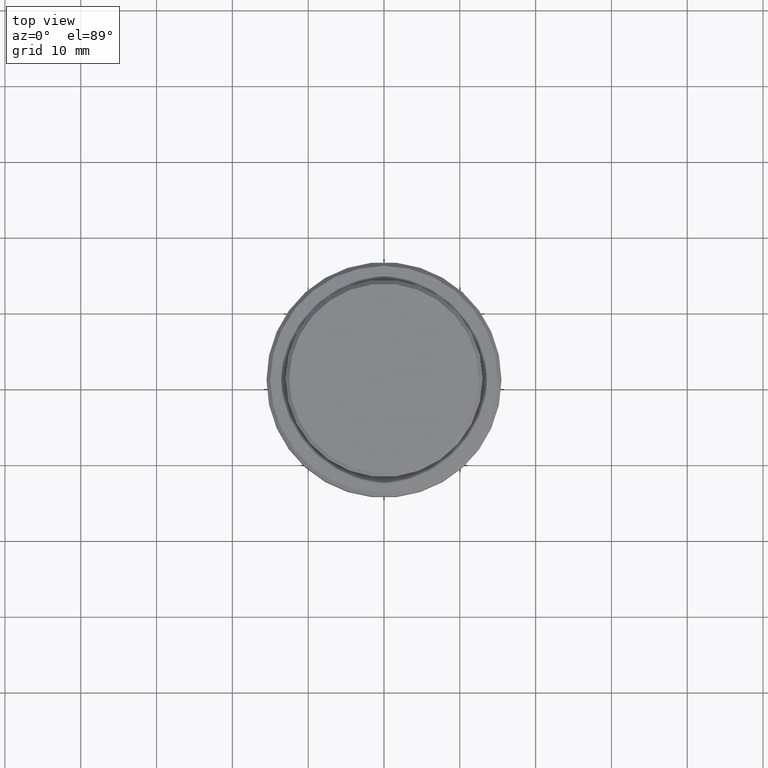
[diagram: clean part render]
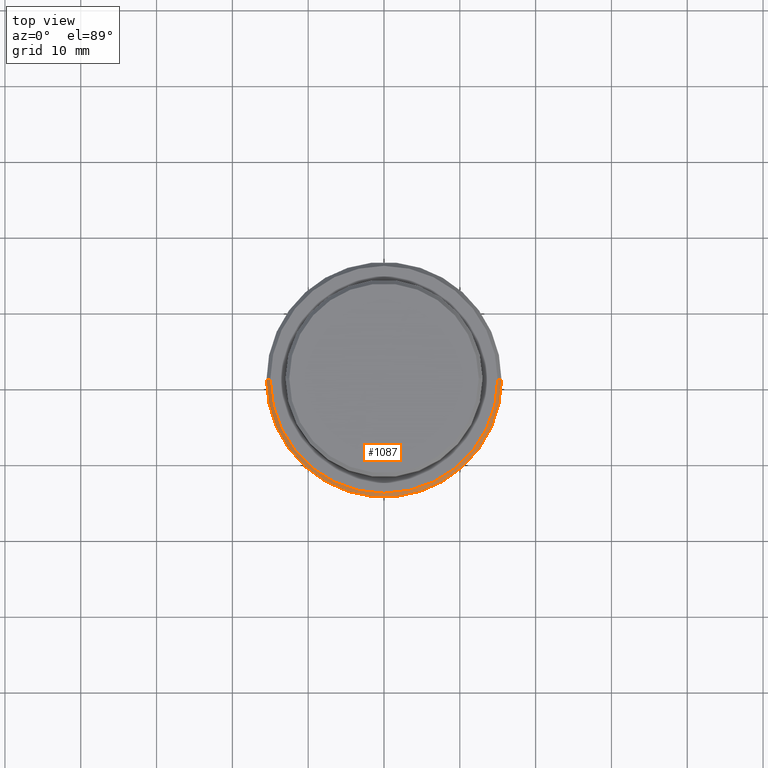
[diagram: same view with one face highlighted and labeled with its STEP entity id]
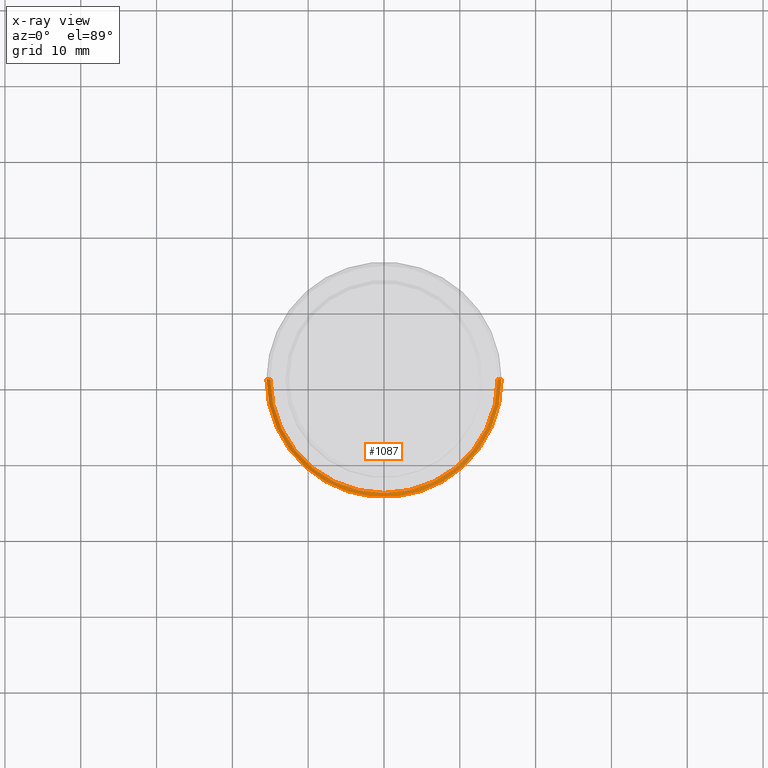
[diagram: x-ray of the same camera — body ghosted, the highlighted face saturated]
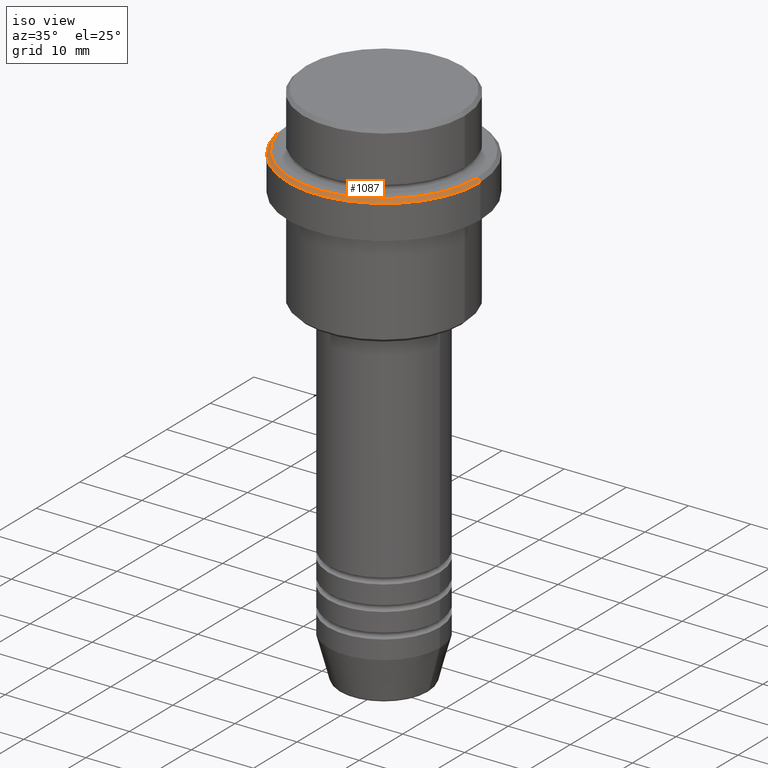
[diagram: same view with one face highlighted and labeled with its STEP entity id]
A machine part, top view. The second image highlights one B-rep face of the part: STEP entity #1087.
The next image is the same camera in x-ray: the body ghosted, the highlighted face saturated — about 0% of this face is hidden behind the body in this view.
A second angle (iso view) of the same face is appended — the face is thin or edge-on in the first view.
In plain terms, the highlighted conical surface has half-angle 45 deg.
Its self-contained STEP definition (entity closure, byte-faithful):
#7 = VECTOR ( 'NONE', #371, 1000.000000000000000 ) ;
#21 = LINE ( 'NONE', #1337, #7 ) ;
#64 = CARTESIAN_POINT ( 'NONE',  ( 15.00000000000001421, 1.836970198721031561E-15, -9.000000000000001776 ) ) ;
#65 = EDGE_CURVE ( 'NONE', #531, #648, #831, .T. ) ;
#66 = FACE_OUTER_BOUND ( 'NONE', #108, .T. ) ;
#95 = CARTESIAN_POINT ( 'NONE',  ( -15.50000000000000000, 1.898202538678397557E-15, -9.499999999999985789 ) ) ;
#108 = EDGE_LOOP ( 'NONE', ( #267, #560, #1179, #1083 ) ) ;
#133 = DIRECTION ( 'NONE',  ( -0.000000000000000000, -0.000000000000000000, 1.000000000000000000 ) ) ;
#169 = LINE ( 'NONE', #64, #645 ) ;
#183 = DIRECTION ( 'NONE',  ( 0.000000000000000000, 0.000000000000000000, -1.000000000000000000 ) ) ;
#228 = DIRECTION ( 'NONE',  ( 0.000000000000000000, 0.000000000000000000, -1.000000000000000000 ) ) ;
#231 = EDGE_CURVE ( 'NONE', #648, #434, #169, .T. ) ;
#263 = AXIS2_PLACEMENT_3D ( 'NONE', #994, #133, #582 ) ;
#267 = ORIENTED_EDGE ( 'NONE', *, *, #231, .F. ) ;
#288 = CARTESIAN_POINT ( 'NONE',  ( 0.000000000000000000, 0.000000000000000000, -9.000000000000001776 ) ) ;
#345 = DIRECTION ( 'NONE',  ( 1.000000000000000000, 0.000000000000000000, 0.000000000000000000 ) ) ;
#371 = DIRECTION ( 'NONE',  ( -0.7071067811865487940, 0.000000000000000000, -0.7071067811865463515 ) ) ;
#434 = VERTEX_POINT ( 'NONE', #589 ) ;
#456 = CARTESIAN_POINT ( 'NONE',  ( -15.00000000000001421, 0.000000000000000000, -9.000000000000001776 ) ) ;
#460 = EDGE_CURVE ( 'NONE', #434, #883, #898, .T. ) ;
#531 = VERTEX_POINT ( 'NONE', #456 ) ;
#560 = ORIENTED_EDGE ( 'NONE', *, *, #65, .F. ) ;
#582 = DIRECTION ( 'NONE',  ( 1.000000000000000000, 0.000000000000000000, 0.000000000000000000 ) ) ;
#589 = CARTESIAN_POINT ( 'NONE',  ( 15.50000000000000000, 0.000000000000000000, -9.499999999999985789 ) ) ;
#645 = VECTOR ( 'NONE', #1129, 1000.000000000000000 ) ;
#647 = AXIS2_PLACEMENT_3D ( 'NONE', #1314, #228, #345 ) ;
#648 = VERTEX_POINT ( 'NONE', #1127 ) ;
#781 = AXIS2_PLACEMENT_3D ( 'NONE', #288, #183, #838 ) ;
#831 = CIRCLE ( 'NONE', #263, 15.00000000000001421 ) ;
#838 = DIRECTION ( 'NONE',  ( -1.000000000000000000, 0.000000000000000000, 0.000000000000000000 ) ) ;
#883 = VERTEX_POINT ( 'NONE', #95 ) ;
#898 = CIRCLE ( 'NONE', #647, 15.50000000000000000 ) ;
#994 = CARTESIAN_POINT ( 'NONE',  ( 0.000000000000000000, 0.000000000000000000, -9.000000000000001776 ) ) ;
#1083 = ORIENTED_EDGE ( 'NONE', *, *, #460, .F. ) ;
#1087 = ADVANCED_FACE ( 'NONE', ( #66 ), #1255, .T. ) ;
#1127 = CARTESIAN_POINT ( 'NONE',  ( 15.00000000000001421, 1.867586368699714559E-15, -9.000000000000001776 ) ) ;
#1129 = DIRECTION ( 'NONE',  ( 0.7071067811865487940, 8.659560562354950115E-17, -0.7071067811865463515 ) ) ;
#1179 = ORIENTED_EDGE ( 'NONE', *, *, #1404, .T. ) ;
#1255 = CONICAL_SURFACE ( 'NONE', #781, 15.00000000000001421, 0.7853981633974500554 ) ;
#1314 = CARTESIAN_POINT ( 'NONE',  ( 0.000000000000000000, 0.000000000000000000, -9.499999999999985789 ) ) ;
#1337 = CARTESIAN_POINT ( 'NONE',  ( -15.00000000000001421, 0.000000000000000000, -9.000000000000001776 ) ) ;
#1404 = EDGE_CURVE ( 'NONE', #531, #883, #21, .T. ) ;